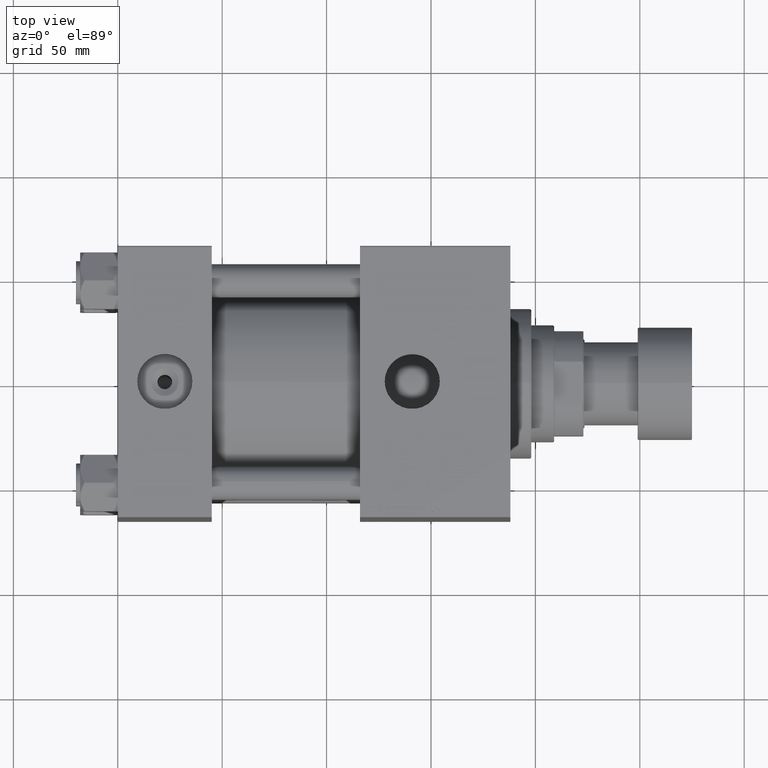
[diagram: clean part render]
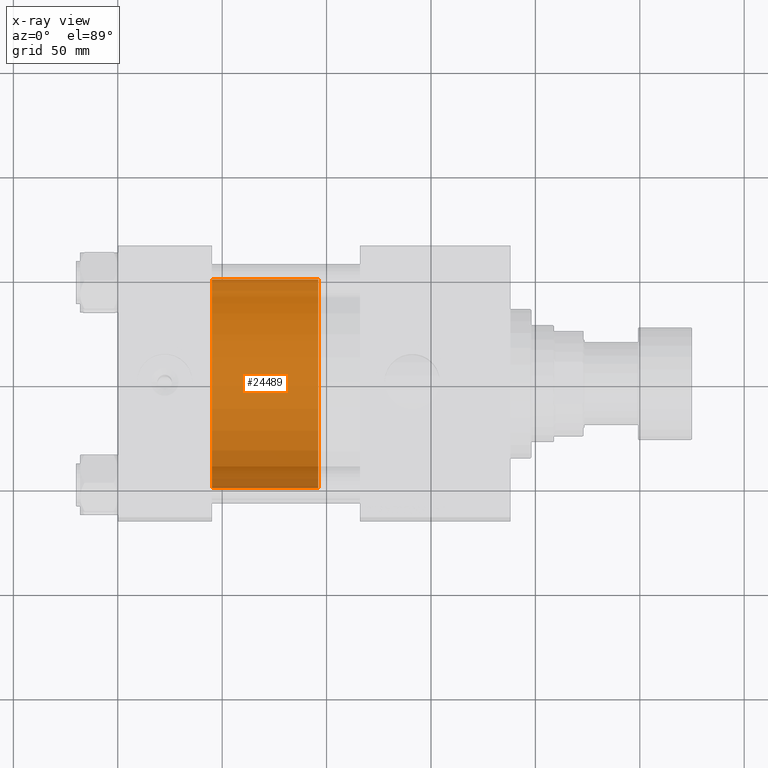
[diagram: x-ray — body ghosted, one internal face saturated and labeled with its STEP entity id]
A machine part, top view, then the same camera in x-ray: the body is ghosted and one INTERNAL B-rep face — a face not visible from any outside direction — is saturated and labeled: STEP entity #24489.
In plain terms, the highlighted cylindrical surface (partial cylindrical patch) has radius 50 mm, axis along (-1, 0, 0).
Its self-contained STEP definition (entity closure, byte-faithful):
#687 = EDGE_CURVE ( 'NONE', #15316, #48076, #45267, .T. ) ;
#2928 = ORIENTED_EDGE ( 'NONE', *, *, #14028, .F. ) ;
#4849 = AXIS2_PLACEMENT_3D ( 'NONE', #19216, #36117, #32091 ) ;
#5746 = CARTESIAN_POINT ( 'NONE',  ( 50.00000000000000000, 6.123233995736766085E-15, 51.00000000000000000 ) ) ;
#10587 = LINE ( 'NONE', #5746, #45003 ) ;
#10860 = FACE_OUTER_BOUND ( 'NONE', #37165, .T. ) ;
#11045 = AXIS2_PLACEMENT_3D ( 'NONE', #26712, #42521, #50849 ) ;
#11058 = EDGE_CURVE ( 'NONE', #47165, #15316, #10587, .T. ) ;
#12147 = CARTESIAN_POINT ( 'NONE',  ( -50.00000000000000000, 0.000000000000000000, 0.000000000000000000 ) ) ;
#12573 = CIRCLE ( 'NONE', #4849, 50.00000000000000000 ) ;
#14028 = EDGE_CURVE ( 'NONE', #47165, #49813, #12573, .T. ) ;
#15316 = VERTEX_POINT ( 'NONE', #22001 ) ;
#15863 = LINE ( 'NONE', #48585, #20818 ) ;
#15953 = CARTESIAN_POINT ( 'NONE',  ( 0.000000000000000000, 0.000000000000000000, 51.00000000000000000 ) ) ;
#18686 = ORIENTED_EDGE ( 'NONE', *, *, #687, .T. ) ;
#19216 = CARTESIAN_POINT ( 'NONE',  ( 0.000000000000000000, 0.000000000000000000, 51.00000000000000000 ) ) ;
#19430 = CARTESIAN_POINT ( 'NONE',  ( -50.00000000000000000, 0.000000000000000000, 51.00000000000000000 ) ) ;
#20818 = VECTOR ( 'NONE', #35994, 1000.000000000000000 ) ;
#21592 = ORIENTED_EDGE ( 'NONE', *, *, #11058, .T. ) ;
#22001 = CARTESIAN_POINT ( 'NONE',  ( 50.00000000000000000, 6.123233995736766085E-15, 0.000000000000000000 ) ) ;
#23201 = DIRECTION ( 'NONE',  ( -0.000000000000000000, -0.000000000000000000, -1.000000000000000000 ) ) ;
#24489 = ADVANCED_FACE ( 'NONE', ( #10860 ), #27224, .T. ) ;
#26712 = CARTESIAN_POINT ( 'NONE',  ( 0.000000000000000000, 0.000000000000000000, 0.000000000000000000 ) ) ;
#27224 = CYLINDRICAL_SURFACE ( 'NONE', #29950, 50.00000000000000000 ) ;
#29950 = AXIS2_PLACEMENT_3D ( 'NONE', #15953, #36610, #31797 ) ;
#31797 = DIRECTION ( 'NONE',  ( -1.000000000000000000, 0.000000000000000000, 0.000000000000000000 ) ) ;
#32091 = DIRECTION ( 'NONE',  ( 1.000000000000000000, 0.000000000000000000, 0.000000000000000000 ) ) ;
#33107 = EDGE_CURVE ( 'NONE', #49813, #48076, #15863, .T. ) ;
#35994 = DIRECTION ( 'NONE',  ( -0.000000000000000000, -0.000000000000000000, -1.000000000000000000 ) ) ;
#36117 = DIRECTION ( 'NONE',  ( 0.000000000000000000, 0.000000000000000000, 1.000000000000000000 ) ) ;
#36610 = DIRECTION ( 'NONE',  ( -0.000000000000000000, -0.000000000000000000, -1.000000000000000000 ) ) ;
#37165 = EDGE_LOOP ( 'NONE', ( #2928, #21592, #18686, #50285 ) ) ;
#42521 = DIRECTION ( 'NONE',  ( 0.000000000000000000, 0.000000000000000000, 1.000000000000000000 ) ) ;
#45003 = VECTOR ( 'NONE', #23201, 1000.000000000000000 ) ;
#45267 = CIRCLE ( 'NONE', #11045, 50.00000000000000000 ) ;
#45564 = CARTESIAN_POINT ( 'NONE',  ( 50.00000000000000000, 6.123233995736766085E-15, 51.00000000000000000 ) ) ;
#47165 = VERTEX_POINT ( 'NONE', #45564 ) ;
#48076 = VERTEX_POINT ( 'NONE', #12147 ) ;
#48585 = CARTESIAN_POINT ( 'NONE',  ( -50.00000000000000000, 0.000000000000000000, 51.00000000000000000 ) ) ;
#49813 = VERTEX_POINT ( 'NONE', #19430 ) ;
#50285 = ORIENTED_EDGE ( 'NONE', *, *, #33107, .F. ) ;
#50849 = DIRECTION ( 'NONE',  ( 1.000000000000000000, 0.000000000000000000, 0.000000000000000000 ) ) ;